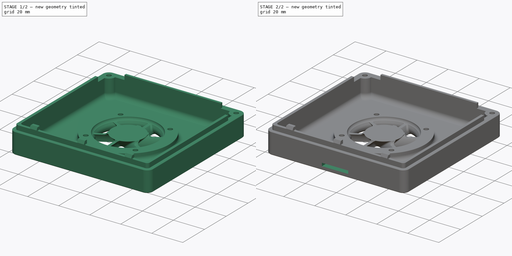
[diagram: build sequence overview — one tinted view per stage of 2, left to right]
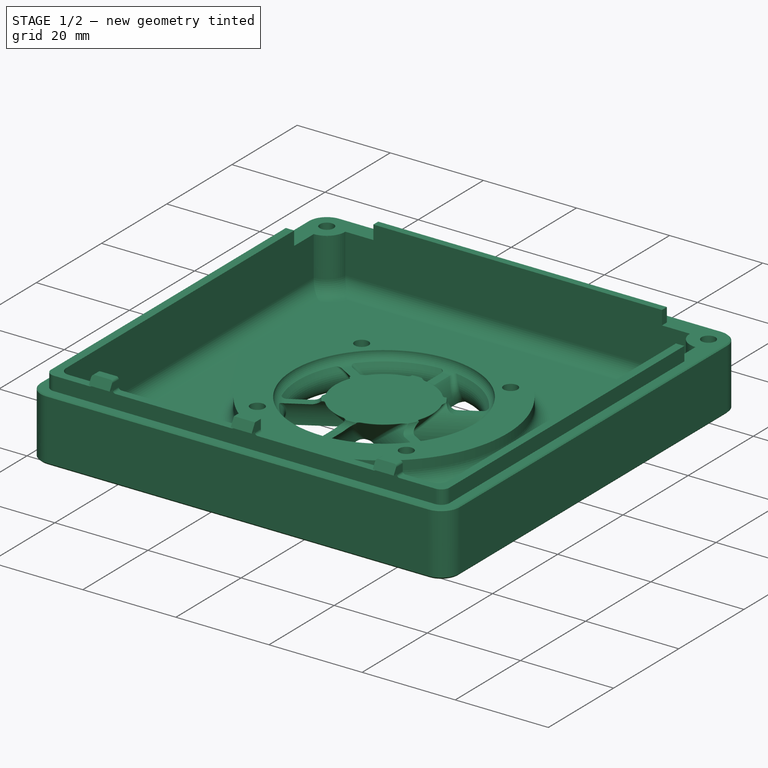
[diagram: stage 1 of 2 — iso view after this stage's code; geometry added in this stage tinted green]
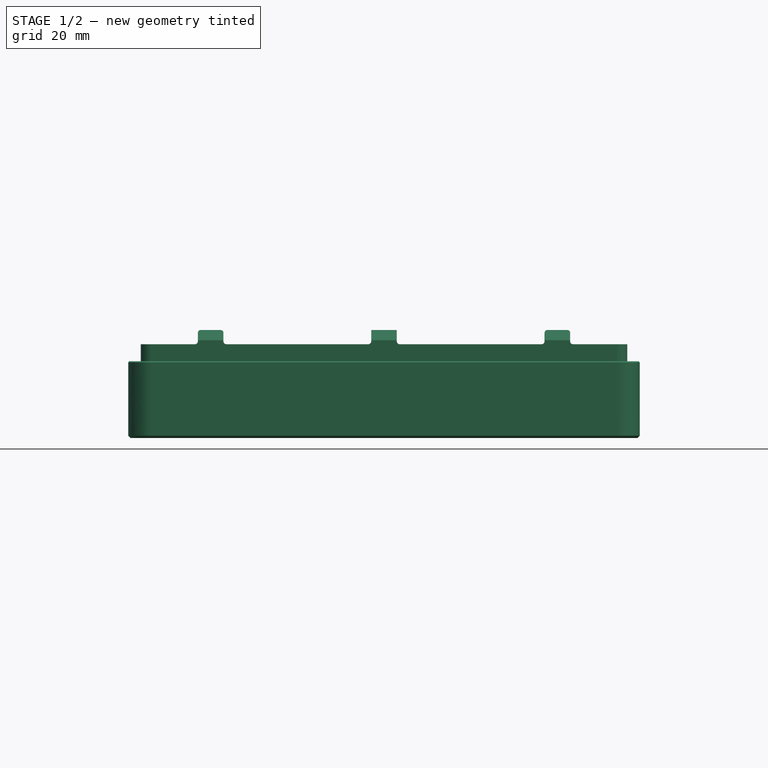
[diagram: stage 1 of 2 — front view after this stage's code; geometry added in this stage tinted green]
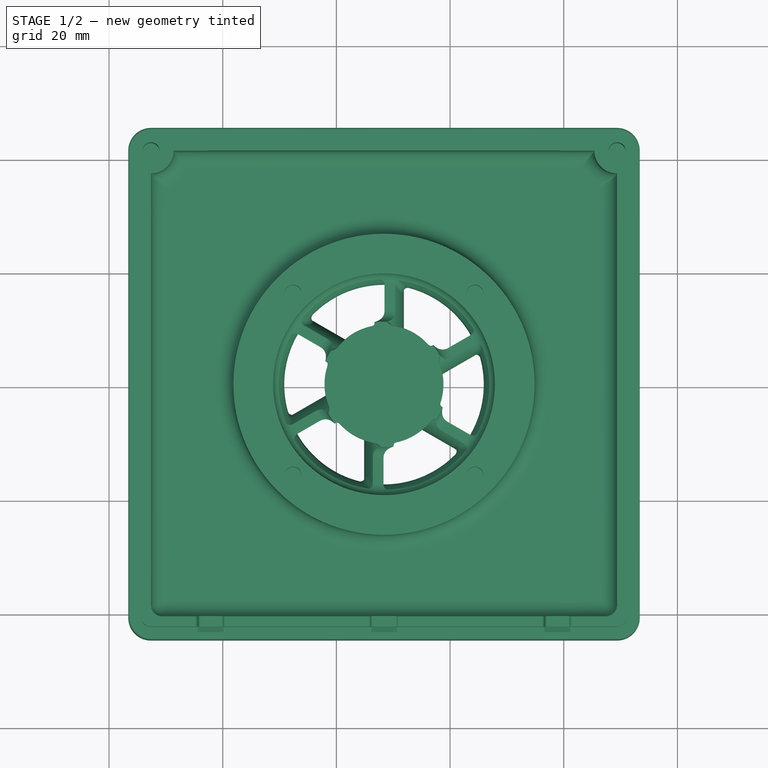
[diagram: stage 1 of 2 — top view after this stage's code; geometry added in this stage tinted green]
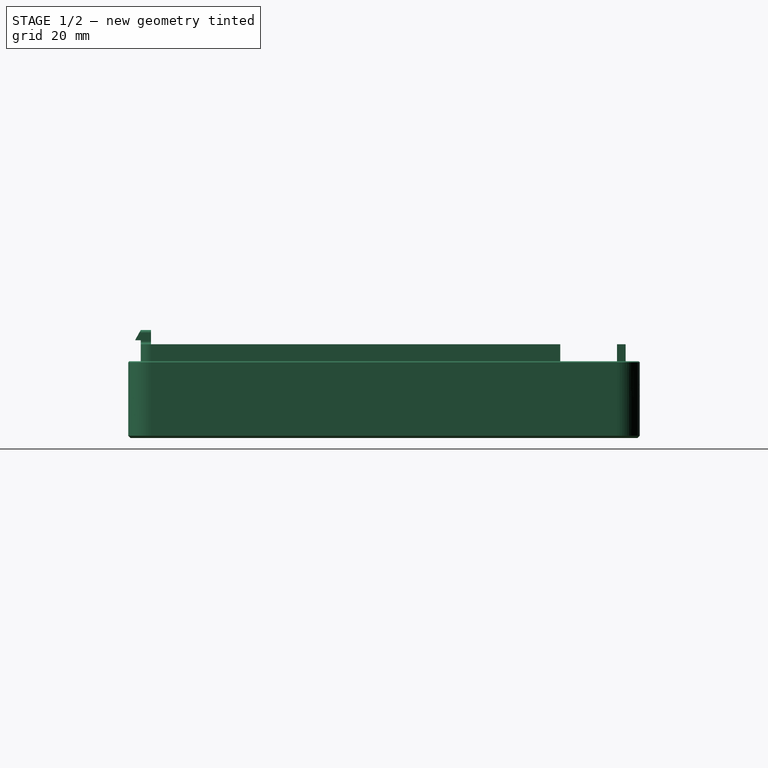
[diagram: stage 1 of 2 — right view after this stage's code; geometry added in this stage tinted green]
FCSTD DOCUMENT  (FreeCAD 0.18R4 (GitTag))
Label: Pi Case
License: All rights reserved
LicenseURL: http://en.wikipedia.org/wiki/All_rights_reserved
objects: Part::Feature×1, PartDesign::FeatureBase×1, Sketcher::SketchObject×1, PartDesign::Pocket×1, PartDesign::Body×1
note: 6 computed .brp shape members not serialized (recipe doc carries the construction recipe); baked Part::Feature solids carry a one-line shape summary decoded from their .brp

FEATURE [Part::Feature] Pi3__case_lid001_solid001  label="Pi3__case_lid001 (Solid)001"
  shape: large baked B-rep (54 MB .brp); summary skipped
FEATURE [PartDesign::FeatureBase] BaseFeature
  BaseFeature = -> Pi3__case_lid001_solid001
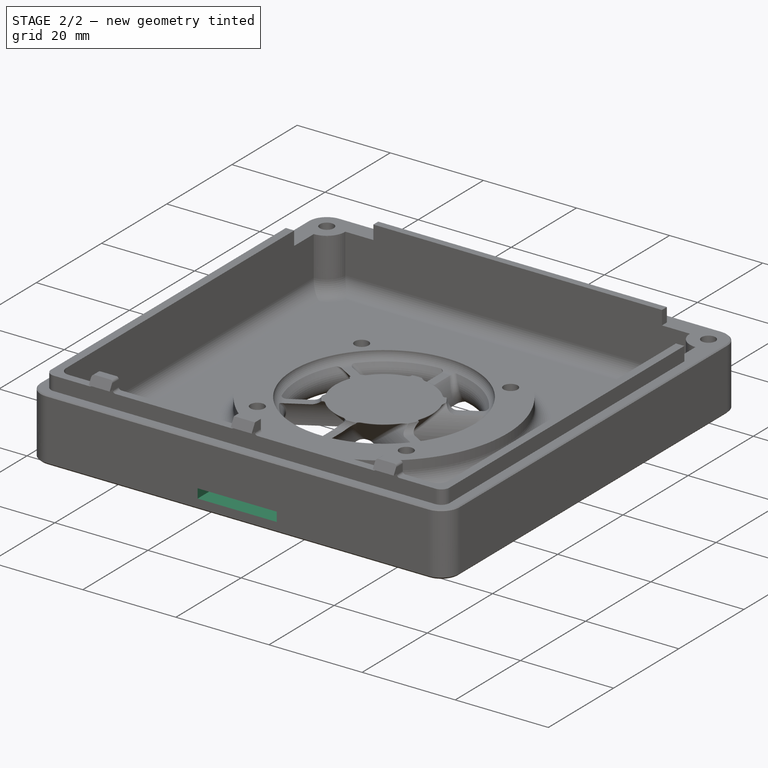
[diagram: stage 2 of 2 — iso view after this stage's code; geometry added in this stage tinted green]
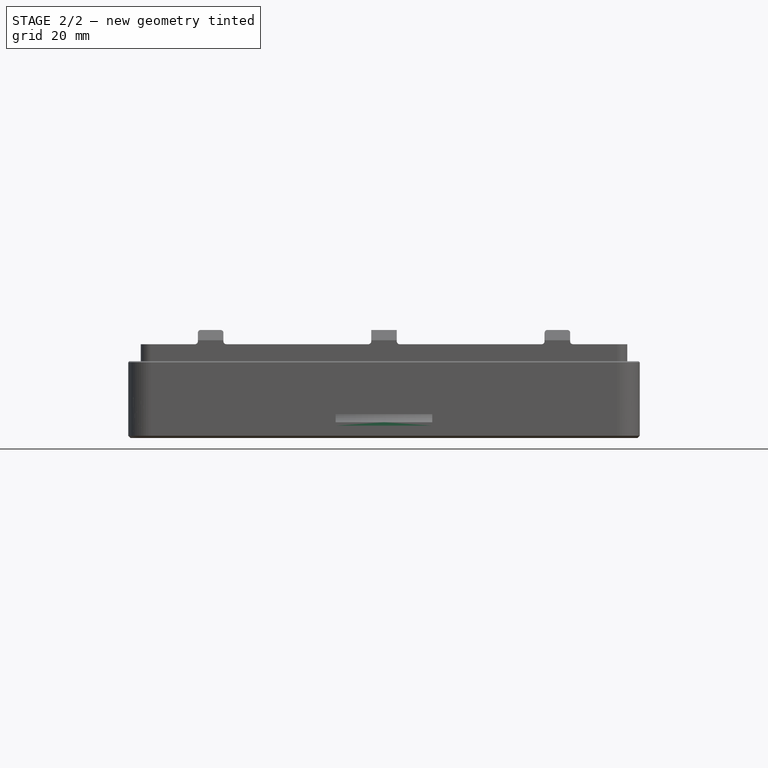
[diagram: stage 2 of 2 — front view after this stage's code; geometry added in this stage tinted green]
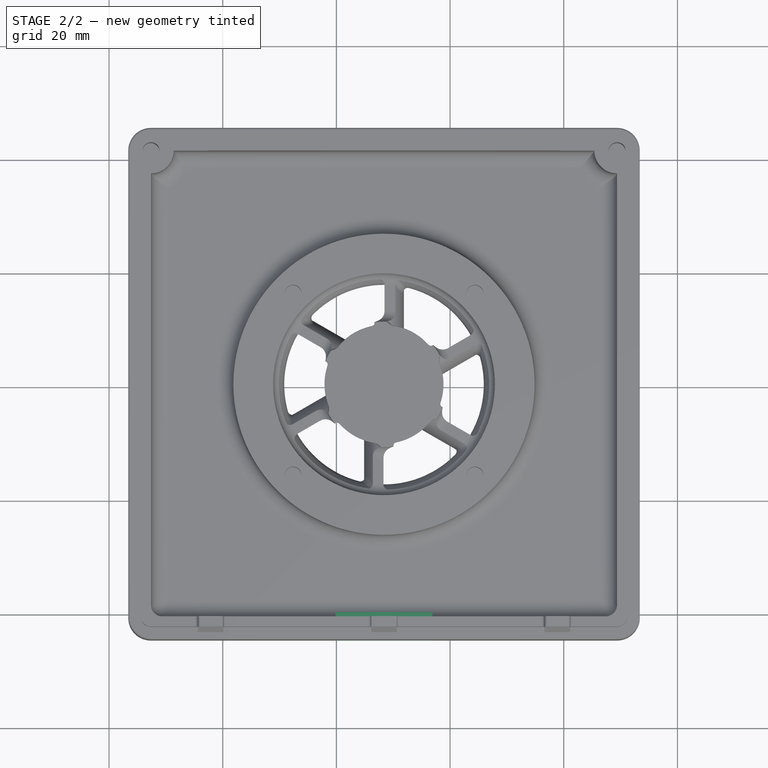
[diagram: stage 2 of 2 — top view after this stage's code; geometry added in this stage tinted green]
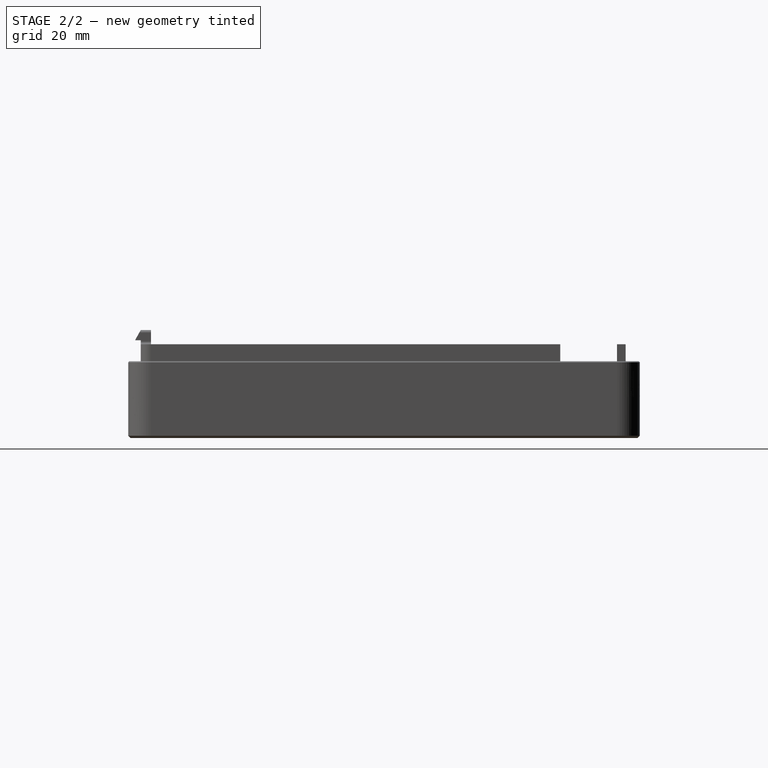
[diagram: stage 2 of 2 — right view after this stage's code; geometry added in this stage tinted green]
FEATURE [Sketcher::SketchObject] Sketch
  MapMode = 5
  Placement = pos=(0.00290722,195.449,0.000238082) rot=(1,-7e-06,-7e-06;1.5708rad)
  Support = -> [BaseFeature]
  sketch-geometry (5):
    g0: LineSegment StartX=119.857 StartY=4.17278 StartZ=0 EndX=136.857 EndY=4.17278 EndZ=0
    g1: LineSegment StartX=136.857 StartY=4.17278 StartZ=0 EndX=136.857 EndY=2.17278 EndZ=0
    g2: LineSegment StartX=136.857 StartY=2.17278 StartZ=0 EndX=119.857 EndY=2.17278 EndZ=0
    g3: LineSegment StartX=119.857 StartY=2.17278 StartZ=0 EndX=119.857 EndY=4.17278 EndZ=0
    g4: LineSegment [constr] StartX=128.357 StartY=20.772 StartZ=0 EndX=128.357 EndY=-5.18623 EndZ=0
  constraints (11):
    c: Coincident(g0,g1)
    c: Coincident(g1,g2)
    c: Coincident(g2,g3)
    c: Coincident(g3,g0)
    c: Horizontal(g0)
    c: Horizontal(g2)
    c: Vertical(g1)
    c: Vertical(g3)
    c: Distance(g0) = 17
    c: Distance(g1) = 2
    c: Symmetric(g1,g2,g4)
FEATURE [PartDesign::Pocket] Pocket
  BaseFeature = -> BaseFeature
  Length = 10
  Length2 = 100
  Midplane = true
  Profile = -> Sketch
  Type = 0
FEATURE [PartDesign::Body] Body
  BaseFeature = -> Pi3__case_lid001_solid001
  Group = -> [BaseFeature,Sketch,Pocket]
  Origin = -> Origin
  Tip = -> Pocket
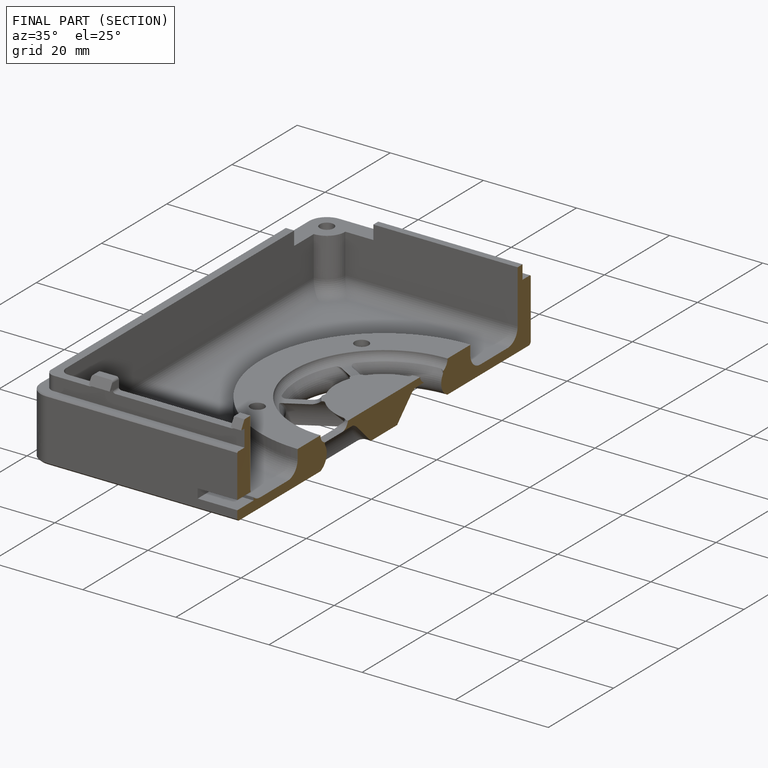
[diagram: finished part — half-section view (interior)]
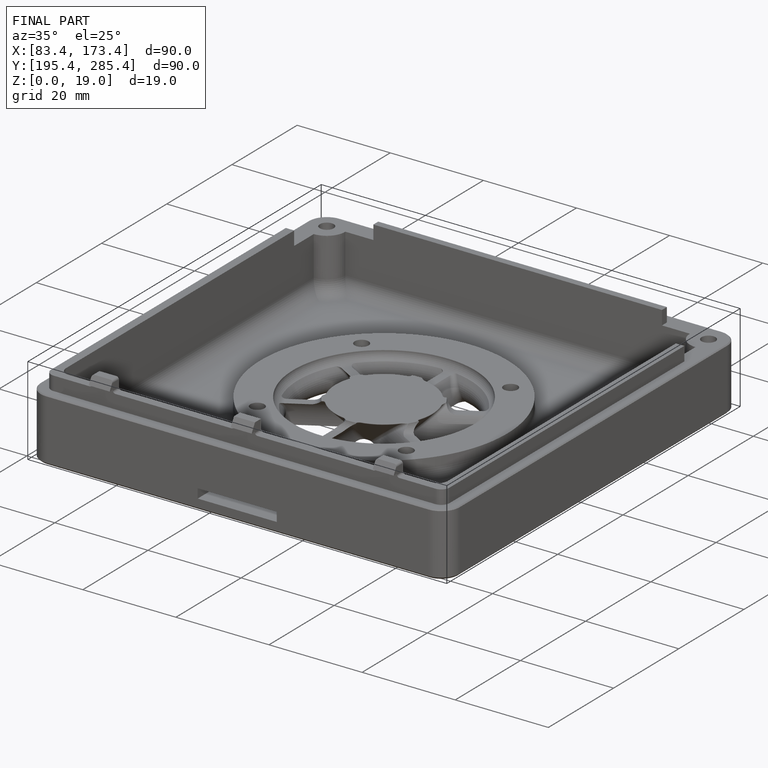
[diagram: finished part — iso view with bounding-box wireframe]
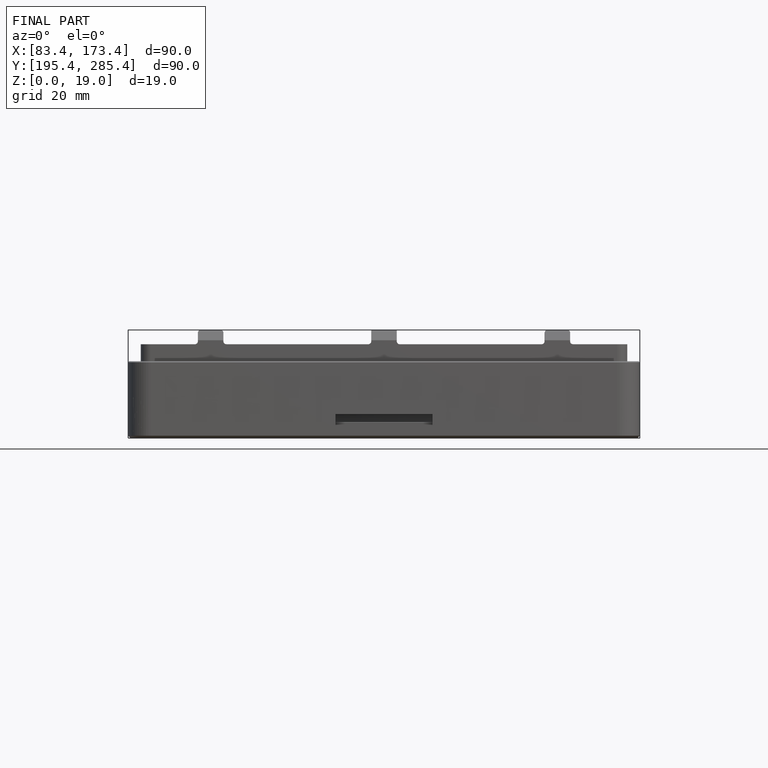
[diagram: finished part — front view with bounding-box wireframe]
